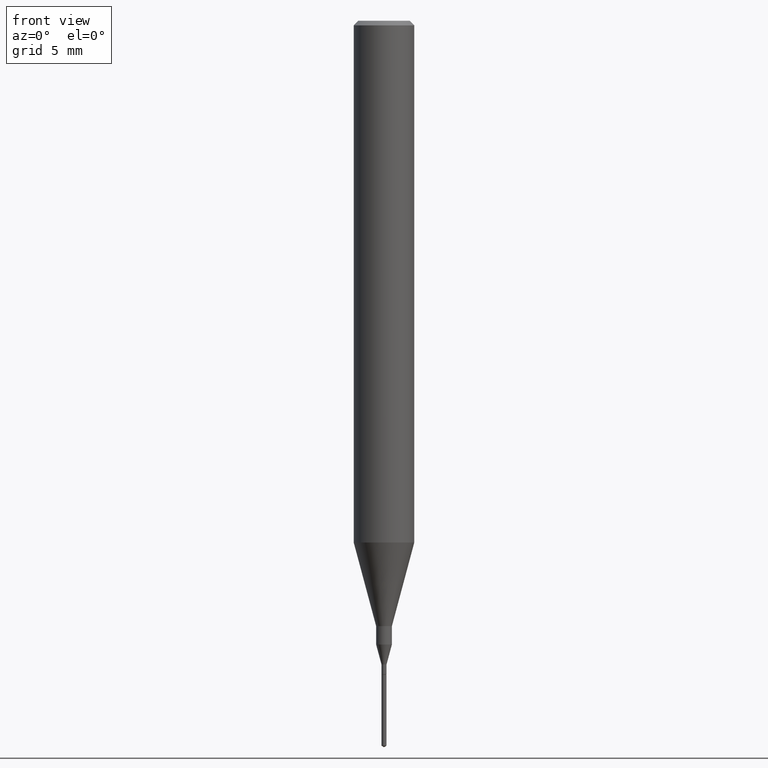
[diagram: clean part render]
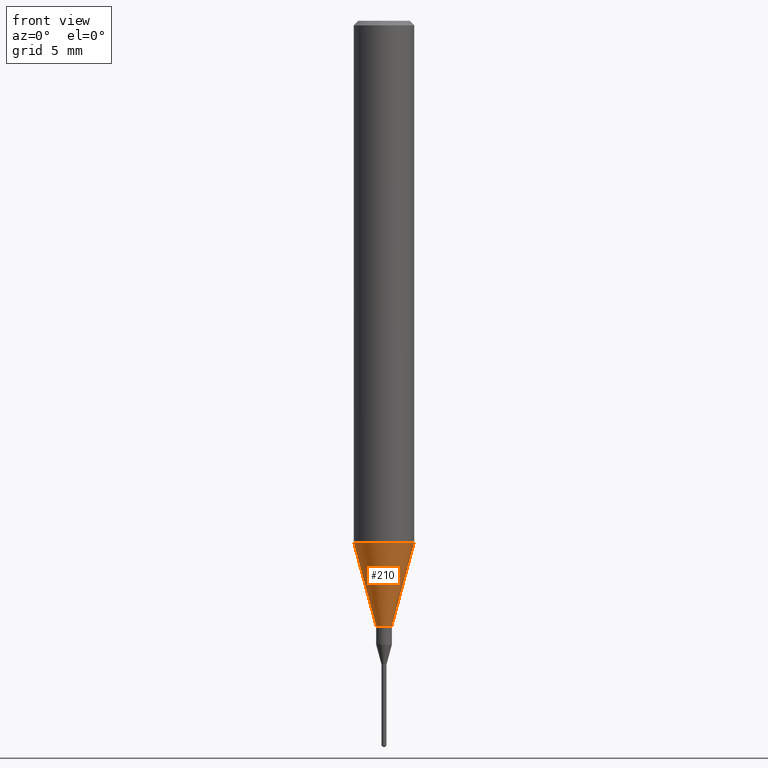
[diagram: same view with one face highlighted and labeled with its STEP entity id]
A machine part, front view. The second image highlights one B-rep face of the part: STEP entity #210.
In plain terms, the highlighted conical surface has half-angle 15 deg.
Its self-contained STEP definition (entity closure, byte-faithful):
#4 = DIRECTION ( 'NONE',  ( -0.2588190451025214611, 5.211531920934551042E-15, 0.9659258262890682012 ) ) ;
#26 = CARTESIAN_POINT ( 'NONE',  ( -0.06250000000000012490, -3.317607122755211895E-15, -1.077392650149939346 ) ) ;
#32 = DIRECTION ( 'NONE',  ( -2.445468806185136597E-29, 3.491481338843145583E-15, 1.000000000000000000 ) ) ;
#36 = DIRECTION ( 'NONE',  ( 1.000000000000000000, -6.982962677686264344E-15, 0.000000000000000000 ) ) ;
#40 = AXIS2_PLACEMENT_3D ( 'NONE', #153, #335, #291 ) ;
#54 = VERTEX_POINT ( 'NONE', #207 ) ;
#77 = VECTOR ( 'NONE', #562, 39.37007874015747433 ) ;
#81 = EDGE_CURVE ( 'NONE', #292, #503, #545, .T. ) ;
#114 = FACE_OUTER_BOUND ( 'NONE', #346, .T. ) ;
#132 = DIRECTION ( 'NONE',  ( 1.000000000000000000, -6.982962677686264344E-15, 0.000000000000000000 ) ) ;
#153 = CARTESIAN_POINT ( 'NONE',  ( 3.056836007731421306E-29, -4.364351673553932471E-15, -1.250000000000000000 ) ) ;
#191 = CARTESIAN_POINT ( 'NONE',  ( -0.01624999999999999709, -4.315134870250894333E-15, -1.250000000000000000 ) ) ;
#203 = CARTESIAN_POINT ( 'NONE',  ( 0.06250000000000012490, -4.198131499960668153E-15, -1.077392650149939346 ) ) ;
#207 = CARTESIAN_POINT ( 'NONE',  ( 0.06250000000000012490, -4.198131499960668153E-15, -1.077392650149939346 ) ) ;
#210 = ADVANCED_FACE ( 'NONE', ( #114 ), #525, .T. ) ;
#267 = LINE ( 'NONE', #498, #582 ) ;
#273 = DIRECTION ( 'NONE',  ( -2.445468806185136597E-29, 3.491481338843145583E-15, 1.000000000000000000 ) ) ;
#274 = VERTEX_POINT ( 'NONE', #26 ) ;
#287 = CIRCLE ( 'NONE', #355, 0.06250000000000012490 ) ;
#289 = ORIENTED_EDGE ( 'NONE', *, *, #318, .T. ) ;
#291 = DIRECTION ( 'NONE',  ( 1.000000000000000000, -6.982962677686288799E-15, 0.000000000000000000 ) ) ;
#292 = VERTEX_POINT ( 'NONE', #191 ) ;
#318 = EDGE_CURVE ( 'NONE', #503, #54, #472, .T. ) ;
#335 = DIRECTION ( 'NONE',  ( -2.445468806185136597E-29, 3.491481338843145583E-15, 1.000000000000000000 ) ) ;
#346 = EDGE_LOOP ( 'NONE', ( #487, #577, #289, #377 ) ) ;
#355 = AXIS2_PLACEMENT_3D ( 'NONE', #543, #273, #132 ) ;
#377 = ORIENTED_EDGE ( 'NONE', *, *, #538, .F. ) ;
#398 = CARTESIAN_POINT ( 'NONE',  ( 0.01624999999999999709, -4.477824817066334148E-15, -1.250000000000000000 ) ) ;
#472 = LINE ( 'NONE', #203, #77 ) ;
#487 = ORIENTED_EDGE ( 'NONE', *, *, #505, .F. ) ;
#498 = CARTESIAN_POINT ( 'NONE',  ( -0.06250000000000012490, -3.317607122755211895E-15, -1.077392650149939346 ) ) ;
#503 = VERTEX_POINT ( 'NONE', #398 ) ;
#505 = EDGE_CURVE ( 'NONE', #292, #274, #267, .T. ) ;
#525 = CONICAL_SURFACE ( 'NONE', #535, 0.06250000000000012490, 0.2617993877991501295 ) ;
#535 = AXIS2_PLACEMENT_3D ( 'NONE', #540, #32, #36 ) ;
#538 = EDGE_CURVE ( 'NONE', #274, #54, #287, .T. ) ;
#540 = CARTESIAN_POINT ( 'NONE',  ( 2.634730117954813298E-29, -3.761696332605275695E-15, -1.077392650149939346 ) ) ;
#543 = CARTESIAN_POINT ( 'NONE',  ( 2.634730117954813298E-29, -3.761696332605275695E-15, -1.077392650149939346 ) ) ;
#545 = CIRCLE ( 'NONE', #40, 0.01624999999999999709 ) ;
#562 = DIRECTION ( 'NONE',  ( 0.2588190451025214611, 1.565188264969621573E-15, 0.9659258262890682012 ) ) ;
#577 = ORIENTED_EDGE ( 'NONE', *, *, #81, .T. ) ;
#582 = VECTOR ( 'NONE', #4, 39.37007874015747433 ) ;